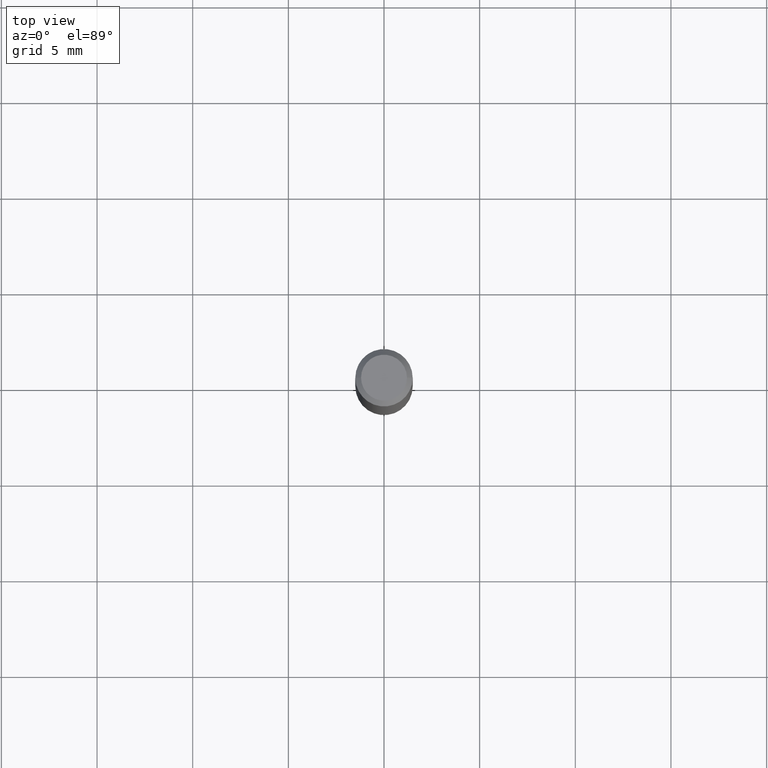
[diagram: clean part render]
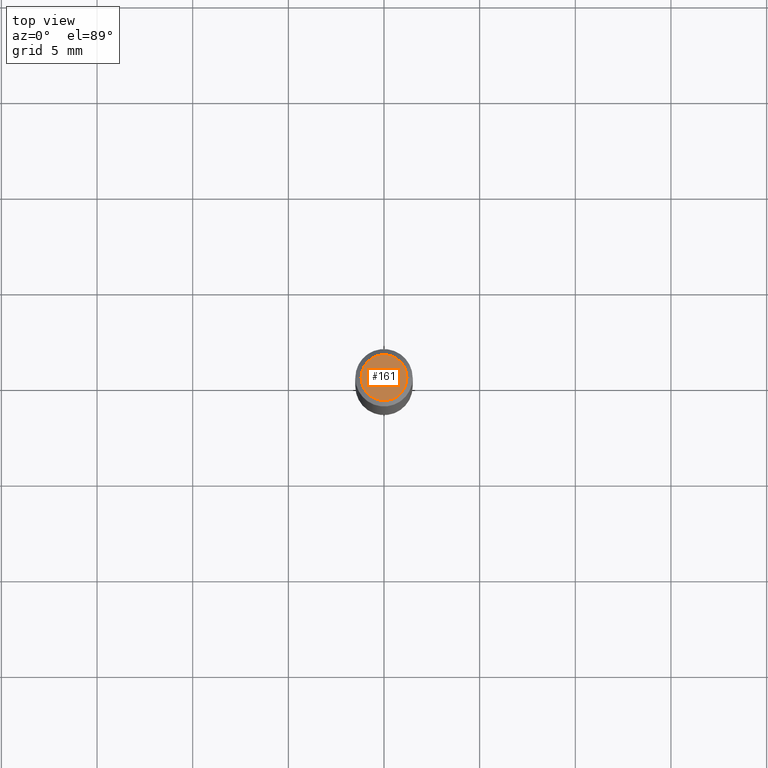
[diagram: same view with one face highlighted and labeled with its STEP entity id]
A machine part, top view. The second image highlights one B-rep face of the part: STEP entity #161.
In plain terms, the highlighted planar face has unit normal (0, -0, -1).
Its self-contained STEP definition (entity closure, byte-faithful):
#4 = DIRECTION ( 'NONE',  ( -2.445468806185136597E-29, 3.491481338843145583E-15, 1.000000000000000000 ) ) ;
#50 = VERTEX_POINT ( 'NONE', #345 ) ;
#62 = AXIS2_PLACEMENT_3D ( 'NONE', #158, #156, #201 ) ;
#83 = DIRECTION ( 'NONE',  ( 2.438088387897960049E-29, -3.491481338843145188E-15, -1.000000000000000000 ) ) ;
#156 = DIRECTION ( 'NONE',  ( -2.445468806185136597E-29, 3.491481338843145583E-15, 1.000000000000000000 ) ) ;
#158 = CARTESIAN_POINT ( 'NONE',  ( 8.265746106709734507E-48, -1.180129479067563789E-33, -3.380025165646692144E-19 ) ) ;
#160 = DIRECTION ( 'NONE',  ( -1.000000000000000000, 6.982962677686265922E-15, -4.876176775795935793E-29 ) ) ;
#161 = ADVANCED_FACE ( 'NONE', ( #237 ), #195, .F. ) ;
#163 = AXIS2_PLACEMENT_3D ( 'NONE', #349, #83, #160 ) ;
#179 = CIRCLE ( 'NONE', #267, 0.04724000000000000421 ) ;
#195 = PLANE ( 'NONE',  #163 ) ;
#196 = EDGE_CURVE ( 'NONE', #50, #427, #329, .T. ) ;
#197 = ORIENTED_EDGE ( 'NONE', *, *, #469, .T. ) ;
#201 = DIRECTION ( 'NONE',  ( 1.000000000000000000, -6.982962677686266711E-15, 4.876185090822587894E-29 ) ) ;
#237 = FACE_OUTER_BOUND ( 'NONE', #477, .T. ) ;
#267 = AXIS2_PLACEMENT_3D ( 'NONE', #481, #4, #328 ) ;
#322 = CARTESIAN_POINT ( 'NONE',  ( -0.04724000000000000421, 3.504923541997677355E-16, -3.380025165670481712E-19 ) ) ;
#328 = DIRECTION ( 'NONE',  ( 1.000000000000000000, -6.982962677686266711E-15, 4.876185090822587894E-29 ) ) ;
#329 = CIRCLE ( 'NONE', #62, 0.04724000000000000421 ) ;
#345 = CARTESIAN_POINT ( 'NONE',  ( 0.04724000000000000421, -3.852183633974369345E-16, -3.380025165621689721E-19 ) ) ;
#349 = CARTESIAN_POINT ( 'NONE',  ( 4.132873053354867254E-48, -5.900647395337818946E-34, -1.690012582823346072E-19 ) ) ;
#363 = ORIENTED_EDGE ( 'NONE', *, *, #196, .T. ) ;
#427 = VERTEX_POINT ( 'NONE', #322 ) ;
#469 = EDGE_CURVE ( 'NONE', #427, #50, #179, .T. ) ;
#477 = EDGE_LOOP ( 'NONE', ( #197, #363 ) ) ;
#481 = CARTESIAN_POINT ( 'NONE',  ( 8.265746106709734507E-48, -1.180129479067563789E-33, -3.380025165646692144E-19 ) ) ;